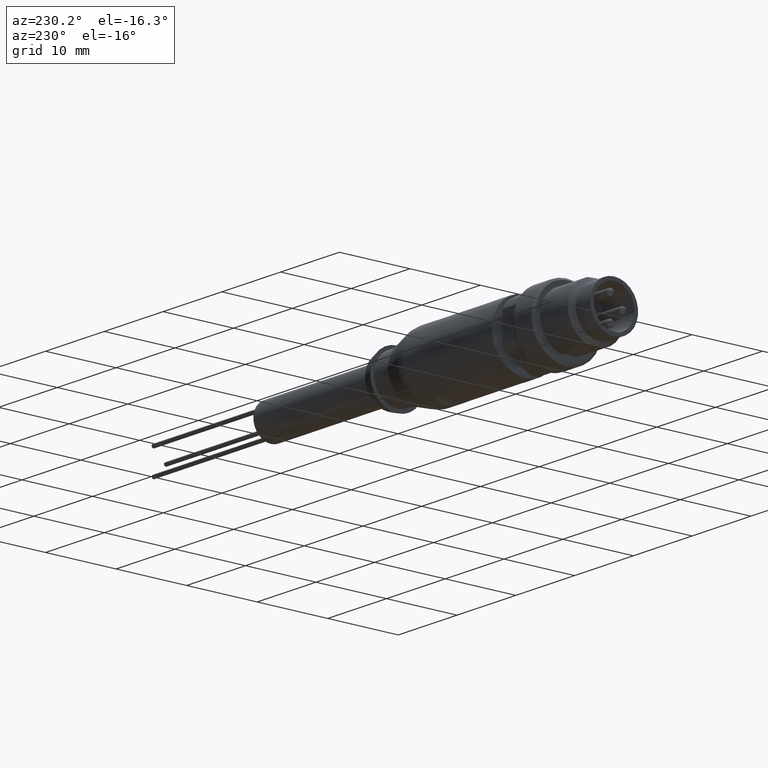
[diagram: clean part render]
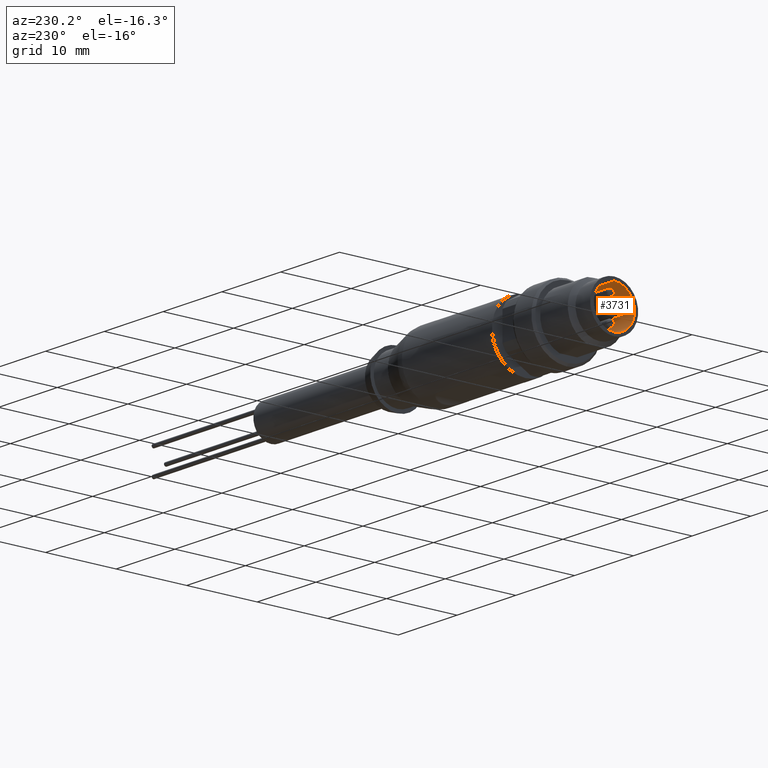
[diagram: same view with one face highlighted and labeled with its STEP entity id]
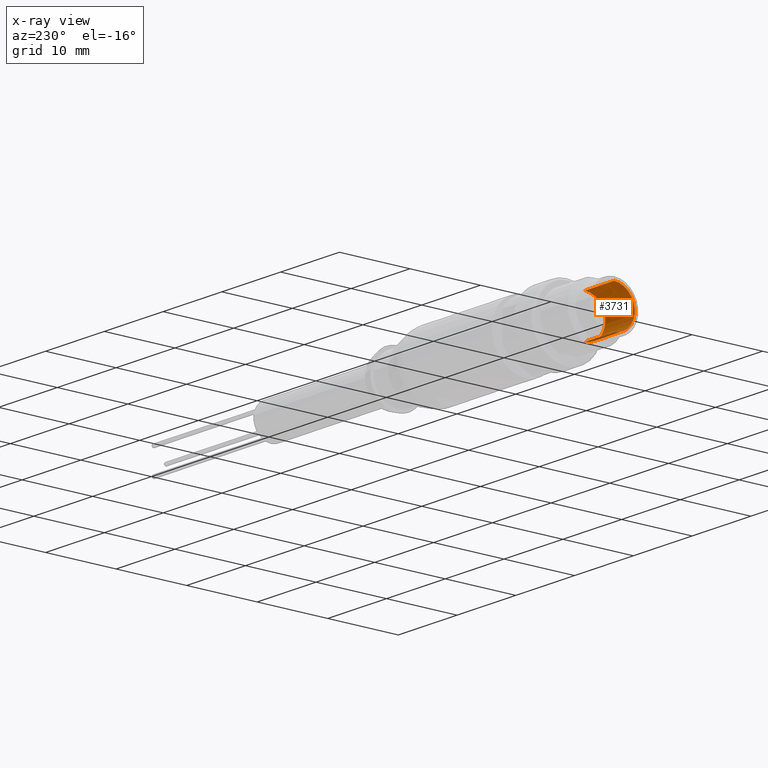
[diagram: x-ray of the same camera — body ghosted, the highlighted face saturated]
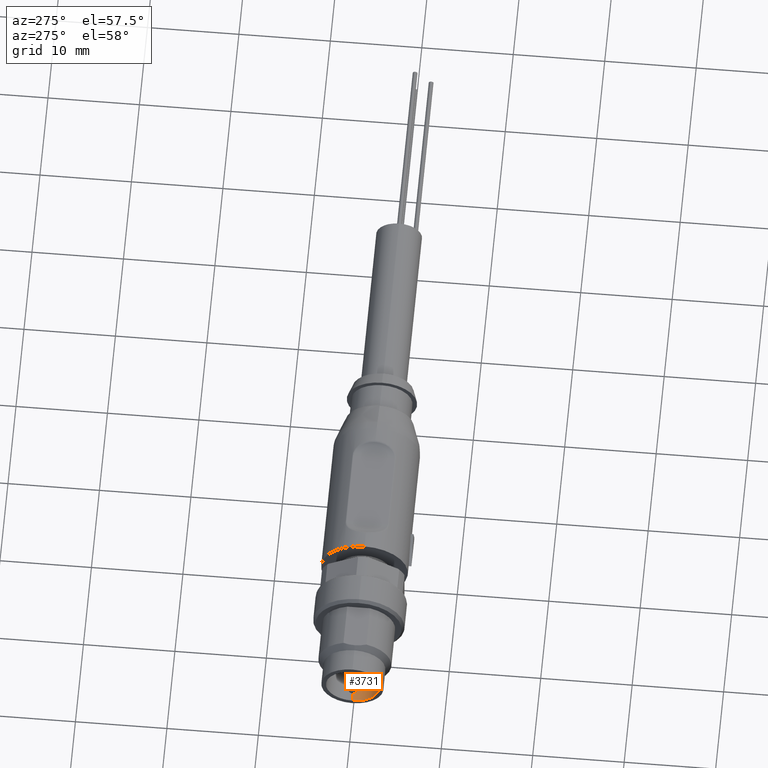
[diagram: same view with one face highlighted and labeled with its STEP entity id]
A machine part, auxiliary view. The second image highlights one B-rep face of the part: STEP entity #3731.
The next image is the same camera in x-ray: the body ghosted, the highlighted face saturated — about 0% of this face is hidden behind the body in this view.
A second angle (auxiliary view) of the same face is appended — the face is thin or edge-on in the first view.
In plain terms, the highlighted cylindrical surface (edge-blend (fillet) strip) has radius 2.9 mm, axis along (-1, 0, 0).
Its self-contained STEP definition (entity closure, byte-faithful):
#337 = CARTESIAN_POINT ( 'NONE',  ( -26.75000000000000000, 8.879616000000001400E-016, 0.0000000000000000000 ) ) ;
#631 = CARTESIAN_POINT ( 'NONE',  ( -26.75000000000000000, 1.243109171752732500E-015, -2.899999999999999900 ) ) ;
#637 = VECTOR ( 'NONE', #1337, 1000.000000000000000 ) ;
#673 = DIRECTION ( 'NONE',  ( 0.0000000000000000000, 0.0000000000000000000, 1.000000000000000000 ) ) ;
#820 = AXIS2_PLACEMENT_3D ( 'NONE', #1297, #4287, #3627 ) ;
#952 = CARTESIAN_POINT ( 'NONE',  ( -26.75000000000000000, 8.879616000000001400E-016, 2.899999999999999900 ) ) ;
#1297 = CARTESIAN_POINT ( 'NONE',  ( -24.25000000000000000, 8.879616000000001400E-016, 0.0000000000000000000 ) ) ;
#1337 = DIRECTION ( 'NONE',  ( -1.000000000000000000, 0.0000000000000000000, 0.0000000000000000000 ) ) ;
#1396 = EDGE_CURVE ( 'NONE', #3965, #2817, #1909, .T. ) ;
#1468 = CARTESIAN_POINT ( 'NONE',  ( -21.75000000000000700, 8.879616000000001400E-016, 2.899999999999999900 ) ) ;
#1525 = CIRCLE ( 'NONE', #3458, 2.899999999999999900 ) ;
#1807 = CARTESIAN_POINT ( 'NONE',  ( -21.75000000000000700, 1.243109171752732500E-015, -2.899999999999999900 ) ) ;
#1867 = EDGE_CURVE ( 'NONE', #2817, #2502, #3288, .T. ) ;
#1880 = CARTESIAN_POINT ( 'NONE',  ( -24.25000000000000000, 8.879616000000001400E-016, 2.899999999999999900 ) ) ;
#1895 = DIRECTION ( 'NONE',  ( -1.000000000000000000, 0.0000000000000000000, 0.0000000000000000000 ) ) ;
#1909 = CIRCLE ( 'NONE', #3795, 2.899999999999999900 ) ;
#1949 = ORIENTED_EDGE ( 'NONE', *, *, #1867, .F. ) ;
#2001 = ORIENTED_EDGE ( 'NONE', *, *, #2602, .F. ) ;
#2067 = EDGE_LOOP ( 'NONE', ( #2788, #3279, #2001, #1949 ) ) ;
#2314 = LINE ( 'NONE', #3320, #637 ) ;
#2502 = VERTEX_POINT ( 'NONE', #952 ) ;
#2602 = EDGE_CURVE ( 'NONE', #2502, #3749, #1525, .T. ) ;
#2671 = DIRECTION ( 'NONE',  ( 1.000000000000000000, -0.0000000000000000000, -0.0000000000000000000 ) ) ;
#2788 = ORIENTED_EDGE ( 'NONE', *, *, #1396, .F. ) ;
#2817 = VERTEX_POINT ( 'NONE', #1468 ) ;
#3279 = ORIENTED_EDGE ( 'NONE', *, *, #3798, .T. ) ;
#3288 = LINE ( 'NONE', #1880, #3383 ) ;
#3290 = CYLINDRICAL_SURFACE ( 'NONE', #820, 2.899999999999999900 ) ;
#3320 = CARTESIAN_POINT ( 'NONE',  ( -24.25000000000000000, 1.243109171752732500E-015, -2.899999999999999900 ) ) ;
#3383 = VECTOR ( 'NONE', #3858, 1000.000000000000000 ) ;
#3458 = AXIS2_PLACEMENT_3D ( 'NONE', #337, #2671, #673 ) ;
#3627 = DIRECTION ( 'NONE',  ( 0.0000000000000000000, 0.0000000000000000000, 1.000000000000000000 ) ) ;
#3731 = ADVANCED_FACE ( 'NONE', ( #4301 ), #3290, .F. ) ;
#3749 = VERTEX_POINT ( 'NONE', #631 ) ;
#3795 = AXIS2_PLACEMENT_3D ( 'NONE', #3882, #1895, #4221 ) ;
#3798 = EDGE_CURVE ( 'NONE', #3965, #3749, #2314, .T. ) ;
#3858 = DIRECTION ( 'NONE',  ( -1.000000000000000000, 0.0000000000000000000, 0.0000000000000000000 ) ) ;
#3882 = CARTESIAN_POINT ( 'NONE',  ( -21.75000000000000700, 8.879616000000001400E-016, 0.0000000000000000000 ) ) ;
#3965 = VERTEX_POINT ( 'NONE', #1807 ) ;
#4221 = DIRECTION ( 'NONE',  ( 0.0000000000000000000, 0.0000000000000000000, 1.000000000000000000 ) ) ;
#4287 = DIRECTION ( 'NONE',  ( -1.000000000000000000, 0.0000000000000000000, 0.0000000000000000000 ) ) ;
#4301 = FACE_OUTER_BOUND ( 'NONE', #2067, .T. ) ;